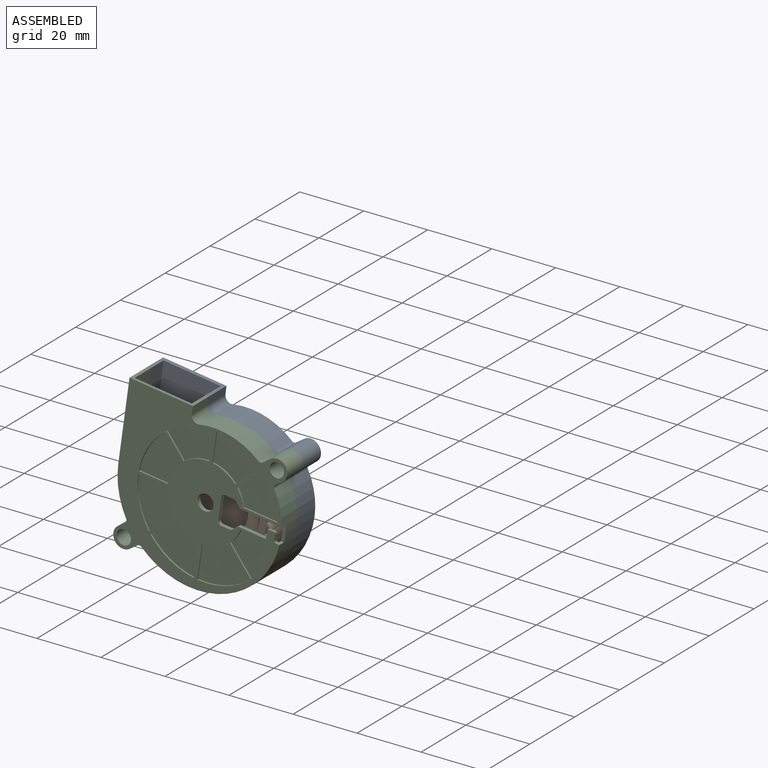
[diagram: assembled view]
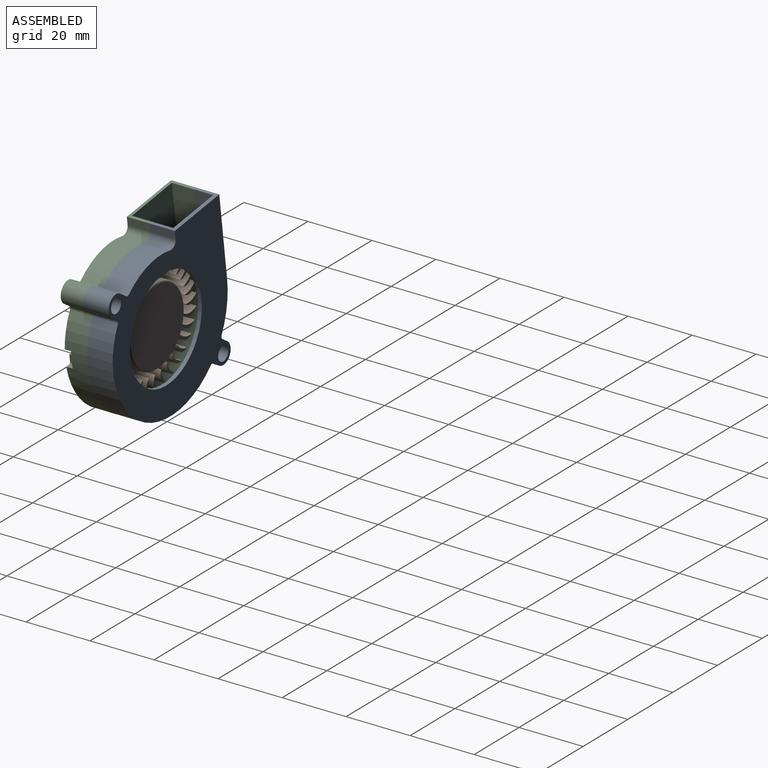
[diagram: assembled view, second angle]
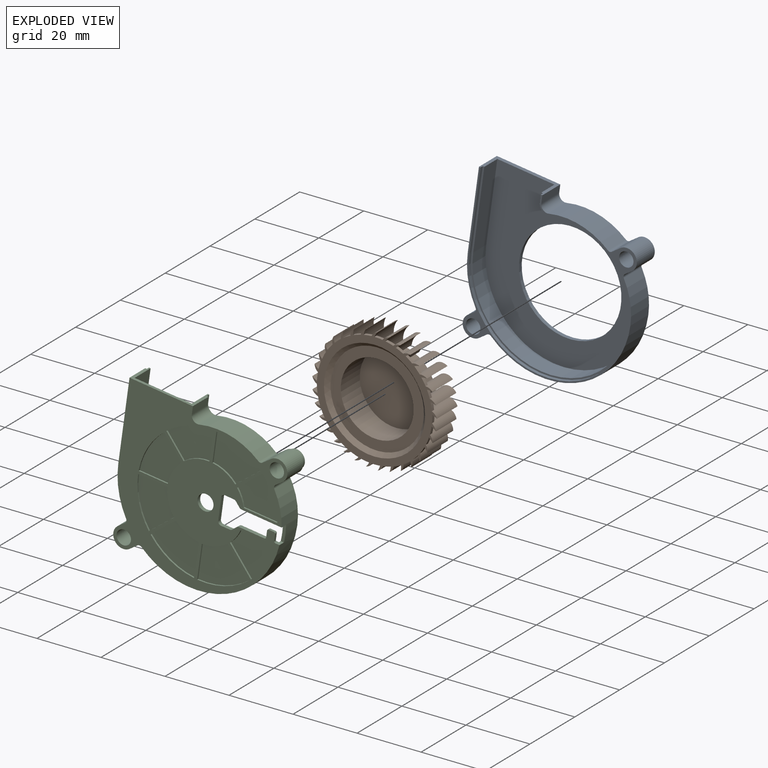
[diagram: exploded view]
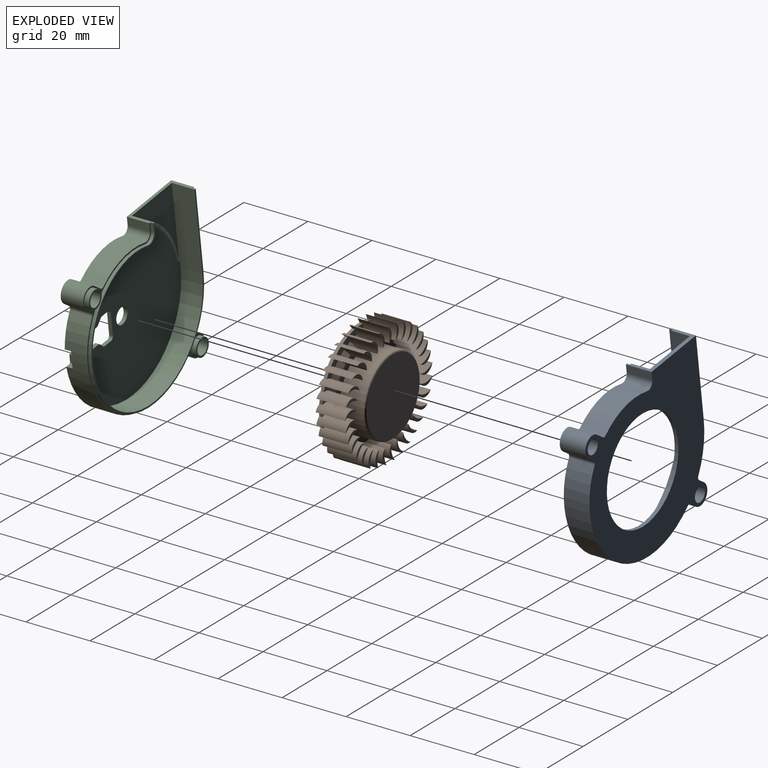
[diagram: exploded view, second angle]
ASSEMBLY  parts=3 mates=2
PART A: 35 faces, bbox 51.3x8x51.1 mm
  f0: cylinder r=22.07mm len=12.41mm, axis (0,-1,0), area 105.5mm2, adj f3,f7,f8,f10
  f1: plane 25.4x1mm, normal (1,0,0), area 25.4mm2, adj f3,f12,f28,f33
  f2: cylinder r=2.25mm len=8mm, axis (0,-1,0), area 113.1mm2, adj f3,f7
  f3: plane 51.3x51.07mm, normal (0,-1,0), area 126.8mm2, adj f0,f1,f2,f5,f6,f8,f9,f10
  f4: cylinder r=16mm len=32mm, axis (0,-1,0), area 120.6mm2, adj f7,f23
  f5: cylinder r=21.57mm len=28.05mm, axis (0,1,0), area 40.5mm2, adj f3,f11,f28,f33
  f6: cylinder r=2mm len=8mm, axis (0,-1,0), area 30mm2, adj f3,f7,f27,f30
  f7: plane 51.3x51.07mm, normal (0,1,0), area 1370.5mm2, adj f0,f2,f4,f6,f8,f9,f10,f12
  f8: cylinder r=1mm len=8mm, axis (0,-1,0), area 11.6mm2, adj f0,f3,f7,f14
  f9: cylinder r=1mm len=8mm, axis (0,-1,0), area 10.6mm2, adj f3,f7,f13,f27
  f10: cylinder r=25.65mm len=41.13mm, axis (0,-1,0), area 455.4mm2, adj f0,f3,f7,f15
  f11: cylinder r=2.5mm len=3.25mm, axis (0,1,0), area 4.7mm2, adj f3,f5,f29,f33
  f12: plane 20x8mm, normal (0,0,1), area 36.6mm2, adj f1,f3,f7,f19,f21,f23,f26,f29
  f13: plane 8x2.44mm, normal (-0.66,0,0.75), area 26mm2, adj f3,f7,f9,f16
  f14: plane 8x2.04mm, normal (0.66,0,-0.75), area 21.8mm2, adj f3,f7,f8,f16
  f15: cylinder r=1mm len=8mm, axis (0,-1,0), area 11mm2, adj f3,f7,f10,f32
  f16: cylinder r=3.3mm len=8mm, axis (0,-1,0), area 82.9mm2, adj f3,f7,f13,f14
  f17: plane 8x1.98mm, normal (-0.66,0,0.75), area 21.1mm2, adj f3,f7,f18,f24
  f18: cylinder r=1mm len=8mm, axis (0,-1,0), area 11.6mm2, adj f3,f7,f17,f31
  f19: plane 25.4x5.8mm, normal (1,0,0), area 147.3mm2, adj f12,f22,f23,f33
  f20: cylinder r=3mm len=5.8mm, axis (0,1,0), area 32.6mm2, adj f23,f25,f26,f33
  f21: plane 25.4x8mm, normal (-1,0,0), area 203.2mm2, adj f3,f7,f12,f31
  f22: cylinder r=24.65mm len=49.3mm, axis (0,1,0), area 449.3mm2, adj f19,f23,f25,f33
  f23: plane 50.07x49.3mm, normal (0,-1,0), area 1168mm2, adj f4,f12,f19,f20,f22,f25,f26
  f24: cylinder r=3.3mm len=8mm, axis (0,-1,0), area 82.9mm2, adj f3,f7,f17,f32
  f25: cylinder r=21.07mm len=27.4mm, axis (0,1,0), area 229.2mm2, adj f20,f22,f23,f33
  f26: plane 5.8x2.44mm, normal (-1,0,0), area 14.2mm2, adj f12,f20,f23,f33
  f27: cylinder r=22.07mm len=19.05mm, axis (0,-1,0), area 159.4mm2, adj f3,f6,f7,f9
  f28: cylinder r=25.15mm len=50.3mm, axis (0,1,0), area 79mm2, adj f1,f3,f5,f33
  f29: plane 2.44x1mm, normal (-1,0,0), area 2.4mm2, adj f3,f11,f12,f33
  f30: plane 8x2.44mm, normal (1,0,0), area 19.6mm2, adj f3,f6,f7,f12
  f31: cylinder r=25.65mm len=14.47mm, axis (0,-1,0), area 122.9mm2, adj f3,f7,f18,f21
  f32: plane 8x2.22mm, normal (0.66,0,-0.75), area 23.7mm2, adj f3,f7,f15,f24
  f33: plane 50.57x50.3mm, normal (0,-1,0), area 75.6mm2, adj f1,f5,f11,f12,f19,f20,f22,f25
  f34: cylinder r=2.25mm len=8mm, axis (0,-1,0), area 113.1mm2, adj f3,f7
PART B: 207 faces, bbox 39x10.5x38.9 mm
  f0: cone r=14.5mm half-angle=45deg, axis (0,-1,0), area 5.5mm2, adj f39,f59,f154,f201
  f1: cylinder r=2.92mm len=9.2mm, axis (0,1,0), area 52mm2, adj f18,f29,f75,f87,f177,f181
  f2: plane 4.09x3.34mm, normal (0,1,0), area 3.4mm2, adj f92,f133
  f3: cylinder r=2.92mm len=9.2mm, axis (0,1,0), area 52mm2, adj f15,f30,f38,f130,f132,f177
  f4: cylinder r=2.92mm len=9.2mm, axis (0,1,0), area 52mm2, adj f50,f112,f139,f140,f146,f177
  f5: cylinder r=5.73mm len=9.2mm, axis (0,1,0), area 44mm2, adj f47,f55,f68,f69,f149,f177
  f6: plane 3.17x2.78mm, normal (0,1,0), area 4.7mm2, adj f16,f25,f43,f64
  f7: plane 3.96x3.47mm, normal (0,1,0), area 3.4mm2, adj f96,f199
  f8: plane 3.08x2.29mm, normal (0,1,0), area 4.7mm2, adj f11,f62,f156,f192
  f9: cylinder r=5.73mm len=9.2mm, axis (0,1,0), area 44mm2, adj f108,f110,f121,f150,f174,f177
  f10: cylinder r=18mm len=2.14mm, axis (0,1,0), area 2.5mm2, adj f96,f106,f177,f195
  f11: cylinder r=5.73mm len=9.2mm, axis (0,1,0), area 44mm2, adj f8,f62,f70,f156,f177,f185
  f12: plane 4.92x2.23mm, normal (0,1,0), area 3.4mm2, adj f49,f167
  f13: cylinder r=18mm len=2.26mm, axis (0,1,0), area 2.5mm2, adj f26,f168,f176,f177
  f14: plane 5.03x1.97mm, normal (0,1,0), area 3.4mm2, adj f57,f116
  f15: cylinder r=18mm len=2.39mm, axis (0,1,0), area 2.5mm2, adj f3,f30,f177,f179
  f16: cone r=14.5mm half-angle=45deg, axis (0,-1,0), area 5.5mm2, adj f6,f43,f64,f154
  f17: plane 4.68x2.64mm, normal (0,1,0), area 3.4mm2, adj f111,f129
  f18: plane 5.09x1.71mm, normal (0,1,0), area 3.4mm2, adj f1,f75
  f19: plane 4.77x2.5mm, normal (0,1,0), area 3.4mm2, adj f37,f148
  f20: plane 5.07x1.79mm, normal (0,1,0), area 3.4mm2, adj f164,f176
  f21: plane 4.01x3.43mm, normal (0,1,0), area 3.4mm2, adj f106,f107
  f22: plane 3.35x2.63mm, normal (0,1,0), area 4.7mm2, adj f114,f128,f159,f171
  f23: cylinder r=18mm len=2.45mm, axis (0,1,0), area 2.5mm2, adj f108,f138,f177,f202
  f24: cylinder r=2.92mm len=9.2mm, axis (0,1,0), area 52mm2, adj f119,f135,f159,f175,f177,f190
  f25: cylinder r=18mm len=2.14mm, axis (0,1,0), area 2.5mm2, adj f6,f43,f64,f177
  f26: plane 3.04x2.71mm, normal (0,1,0), area 4.7mm2, adj f13,f168,f176,f194
  f27: plane 3.4x2.85mm, normal (0,1,0), area 4.7mm2, adj f28,f90,f118,f197
  f28: cylinder r=2.92mm len=9.2mm, axis (0,1,0), area 52mm2, adj f27,f86,f102,f118,f177,f197
  f29: cone r=14.5mm half-angle=45deg, axis (0,-1,0), area 5.5mm2, adj f1,f87,f154,f164
  f30: plane 2.77x2.56mm, normal (0,1,0), area 4.7mm2, adj f3,f15,f38,f179
  f31: plane 3.44x2.81mm, normal (0,1,0), area 4.7mm2, adj f34,f65,f69,f151
  f32: cylinder r=2.92mm len=9.2mm, axis (0,1,0), area 52mm2, adj f46,f63,f158,f177,f193,f206
  f33: cone r=14.5mm half-angle=45deg, axis (0,-1,0), area 5.5mm2, adj f84,f112,f154,f200
  f34: cone r=14.5mm half-angle=45deg, axis (0,-1,0), area 5.5mm2, adj f31,f65,f69,f154
  f35: cylinder r=5.73mm len=9.2mm, axis (0,1,0), area 44mm2, adj f58,f64,f74,f88,f177,f203
  f36: plane 4.38x3.01mm, normal (0,1,0), area 3.4mm2, adj f184,f205
  f37: cylinder r=5.73mm len=9.2mm, axis (0,1,0), area 44mm2, adj f19,f135,f148,f175,f177,f190
  f38: cone r=14.5mm half-angle=45deg, axis (0,-1,0), area 5.5mm2, adj f3,f30,f154,f179
  f39: plane 3.44x2.79mm, normal (0,1,0), area 4.7mm2, adj f0,f59,f142,f201
  f40: cone r=14.5mm half-angle=45deg, axis (0,-1,0), area 5.3mm2, adj f96,f106,f154,f195
  f41: plane 22.8x22.8mm, normal (0,-1,0), area 408.3mm2, adj f81
  f42: plane 3.83x3.61mm, normal (0,1,0), area 3.4mm2, adj f114,f201
  f43: cylinder r=5.73mm len=9.2mm, axis (0,1,0), area 44mm2, adj f6,f16,f25,f117,f126,f177
  f44: cylinder r=2.92mm len=9.2mm, axis (0,1,0), area 52mm2, adj f91,f124,f127,f145,f177,f178
  f45: plane 2.96x2.66mm, normal (0,1,0), area 4.7mm2, adj f60,f98,f169,f204
  f46: cylinder r=18mm len=2.2mm, axis (0,1,0), area 2.5mm2, adj f32,f63,f92,f177
  f47: plane 3.37x2.85mm, normal (0,1,0), area 4.7mm2, adj f5,f55,f117,f149
  f48: cone r=14.5mm half-angle=45deg, axis (0,-1,0), area 5.5mm2, adj f89,f125,f132,f154
  f49: cylinder r=5.73mm len=9.2mm, axis (0,1,0), area 44mm2, adj f12,f79,f136,f143,f167,f177
  f50: plane 4.5x2.87mm, normal (0,1,0), area 3.4mm2, adj f4,f112
  f51: plane 4.98x2.1mm, normal (0,1,0), area 3.4mm2, adj f89,f115
  f52: cylinder r=2.92mm len=9.2mm, axis (0,1,0), area 52mm2, adj f72,f98,f113,f177,f189,f191
  f53: plane 5.04x1.92mm, normal (0,1,0), area 3.4mm2, adj f152,f179
  f54: cylinder r=18mm len=2.5mm, axis (0,1,0), area 2.5mm2, adj f111,f115,f166,f177
  f55: cone r=14.5mm half-angle=45deg, axis (0,-1,0), area 5.5mm2, adj f5,f47,f117,f154
  f56: cone r=14.5mm half-angle=45deg, axis (0,-1,0), area 5.5mm2, adj f131,f152,f154,f178
  f57: cylinder r=2.92mm len=9.2mm, axis (0,1,0), area 52mm2, adj f14,f101,f116,f120,f122,f177
  f58: cone r=14.5mm half-angle=45deg, axis (0,-1,0), area 5.5mm2, adj f35,f74,f154,f183
  f59: cylinder r=2.92mm len=9.2mm, axis (0,1,0), area 52mm2, adj f0,f39,f82,f90,f142,f177
  f60: cone r=14.5mm half-angle=45deg, axis (0,-1,0), area 5.5mm2, adj f45,f98,f154,f204
  f61: cylinder r=18mm len=2.5mm, axis (0,1,0), area 2.5mm2, adj f75,f167,f170,f177
  f62: cone r=14.5mm half-angle=45deg, axis (0,-1,0), area 5.2mm2, adj f8,f11,f154,f192
  f63: plane 3.41x2.72mm, normal (0,1,0), area 4.7mm2, adj f32,f46,f92,f158
  f64: cylinder r=2.92mm len=9.2mm, axis (0,1,0), area 52mm2, adj f6,f16,f25,f35,f177,f203
  f65: cylinder r=5.73mm len=9.2mm, axis (0,1,0), area 44mm2, adj f31,f34,f95,f141,f151,f177
  f66: plane 3.31x2.57mm, normal (0,1,0), area 4.7mm2, adj f77,f78,f186,f199
  f67: cylinder r=18mm len=2.2mm, axis (0,1,0), area 2.5mm2, adj f131,f152,f177,f178
  f68: plane 4.26x3.15mm, normal (0,1,0), area 3.4mm2, adj f5,f69
  f69: cylinder r=2.92mm len=9.2mm, axis (0,1,0), area 52mm2, adj f5,f31,f34,f68,f151,f177
  f70: cylinder r=2.92mm len=9.2mm, axis (0,1,0), area 52mm2, adj f11,f121,f150,f174,f177,f185
  f71: plane 3.43x2.83mm, normal (0,1,0), area 4.7mm2, adj f97,f109,f184,f206
  f72: cone r=14.5mm half-angle=45deg, axis (0,-1,0), area 5.5mm2, adj f52,f86,f154,f191
  f73: cylinder r=12.25mm len=24.5mm, axis (0,1,0), area 577.3mm2, adj f100,f154
  f74: plane 2.87x2.61mm, normal (0,1,0), area 4.7mm2, adj f35,f58,f88,f183
  f75: cylinder r=5.73mm len=9.2mm, axis (0,1,0), area 44mm2, adj f1,f18,f61,f94,f170,f177
  f76: plane 2.83x2.05mm, normal (0,1,0), area 4.7mm2, adj f80,f116,f148,f157
  f77: cylinder r=18mm len=2.35mm, axis (0,1,0), area 2.5mm2, adj f66,f78,f177,f199
  f78: cylinder r=5.73mm len=9.2mm, axis (0,1,0), area 44mm2, adj f66,f77,f177,f186,f188,f192
  f79: cylinder r=18mm len=2.49mm, axis (0,1,0), area 2.5mm2, adj f49,f105,f143,f177
  f80: cone r=14.5mm half-angle=45deg, axis (0,-1,0), area 5.5mm2, adj f76,f116,f148,f154
  f81: cylinder r=11.4mm len=22.8mm, axis (0,1,0), area 608.8mm2, adj f41,f153
  f82: plane 4.13x3.29mm, normal (0,1,0), area 3.4mm2, adj f59,f90
  f83: cone r=14.6mm half-angle=45deg, axis (0,-1,0), area 162.1mm2, adj f153,f177
  f84: cylinder r=2.92mm len=9.2mm, axis (0,1,0), area 52mm2, adj f33,f163,f168,f177,f196,f200
  f85: cylinder r=18mm len=2.25mm, axis (0,1,0), area 2.5mm2, adj f95,f161,f162,f177
  f86: cylinder r=5.73mm len=9.2mm, axis (0,1,0), area 44mm2, adj f28,f72,f102,f113,f177,f191
  f87: plane 2.67x2.5mm, normal (0,1,0), area 4.7mm2, adj f1,f29,f164,f181
  f88: cylinder r=18mm len=2.35mm, axis (0,1,0), area 2.5mm2, adj f35,f74,f177,f183
  f89: cylinder r=2.92mm len=9.2mm, axis (0,1,0), area 52mm2, adj f48,f51,f115,f125,f165,f177
  f90: cylinder r=5.73mm len=9.2mm, axis (0,1,0), area 44mm2, adj f27,f59,f82,f118,f177,f197
  f91: cylinder r=18mm len=1.94mm, axis (0,1,0), area 2.5mm2, adj f44,f124,f177,f205
  f92: cylinder r=5.73mm len=9.2mm, axis (0,1,0), area 44mm2, adj f2,f46,f63,f133,f158,f177
  f93: plane 5.09x1.66mm, normal (0,1,0), area 3.4mm2, adj f202,f204
  f94: cone r=14.5mm half-angle=45deg, axis (0,-1,0), area 5.5mm2, adj f75,f154,f167,f170
  f95: cylinder r=2.92mm len=9.2mm, axis (0,1,0), area 52mm2, adj f65,f85,f141,f147,f161,f177
  f96: cylinder r=5.73mm len=9.2mm, axis (0,1,0), area 44mm2, adj f7,f10,f40,f177,f195,f199
  f97: cylinder r=18mm len=1.93mm, axis (0,1,0), area 2.5mm2, adj f71,f177,f184,f206
  f98: cylinder r=5.73mm len=9.2mm, axis (0,1,0), area 44mm2, adj f45,f52,f60,f169,f177,f189
  f99: cone r=14.5mm half-angle=45deg, axis (0,-1,0), area 5.5mm2, adj f104,f129,f154,f173
  f100: torus R=11.75mm, axis (0,1,0), area 59.6mm2, adj f73,f137
  f101: cone r=14.5mm half-angle=45deg, axis (0,-1,0), area 5.5mm2, adj f57,f120,f154,f182
  f102: plane 4.61x2.74mm, normal (0,1,0), area 3.4mm2, adj f28,f86
  f103: cone r=14.5mm half-angle=45deg, axis (0,-1,0), area 5.5mm2, adj f108,f138,f154,f202
  f104: cylinder r=2.92mm len=9.2mm, axis (0,1,0), area 52mm2, adj f99,f162,f173,f177,f180,f187
  f105: cylinder r=2.92mm len=9.2mm, axis (0,1,0), area 52mm2, adj f79,f123,f134,f136,f143,f177
  f106: cylinder r=2.92mm len=9.2mm, axis (0,1,0), area 52mm2, adj f10,f21,f40,f107,f177,f195
  f107: cylinder r=5.73mm len=9.2mm, axis (0,1,0), area 44mm2, adj f21,f106,f139,f140,f146,f177
  f108: cylinder r=2.92mm len=9.2mm, axis (0,1,0), area 52mm2, adj f9,f23,f103,f110,f138,f177
  f109: cone r=14.5mm half-angle=45deg, axis (0,-1,0), area 5.5mm2, adj f71,f154,f184,f206
  f110: plane 5.06x1.83mm, normal (0,1,0), area 3.4mm2, adj f9,f108
  f111: cylinder r=2.92mm len=9.2mm, axis (0,1,0), area 52mm2, adj f17,f54,f129,f144,f166,f177
  f112: cylinder r=5.73mm len=9.2mm, axis (0,1,0), area 44mm2, adj f4,f33,f50,f177,f196,f200
  f113: cylinder r=18mm len=2.08mm, axis (0,1,0), area 2.5mm2, adj f52,f86,f177,f191
  f114: cylinder r=2.92mm len=9.2mm, axis (0,1,0), area 52mm2, adj f22,f42,f128,f171,f177,f201
  f115: cylinder r=5.73mm len=9.2mm, axis (0,1,0), area 44mm2, adj f51,f54,f89,f144,f166,f177
  f116: cylinder r=5.73mm len=9.2mm, axis (0,1,0), area 44mm2, adj f14,f57,f76,f80,f157,f177
  f117: cylinder r=2.92mm len=9.2mm, axis (0,1,0), area 52mm2, adj f43,f47,f55,f126,f149,f177
  f118: cone r=14.5mm half-angle=45deg, axis (0,-1,0), area 5.5mm2, adj f27,f28,f90,f154
  f119: plane 4.34x3.06mm, normal (0,1,0), area 3.4mm2, adj f24,f159
  f120: plane 2.53x2.46mm, normal (0,1,0), area 4.7mm2, adj f57,f101,f122,f182
  f121: plane 2.74x2.11mm, normal (0,1,0), area 4.7mm2, adj f9,f70,f150,f174
  f122: cylinder r=18mm len=2.47mm, axis (0,1,0), area 2.5mm2, adj f57,f120,f177,f182
  f123: cylinder r=5.73mm len=9.2mm, axis (0,1,0), area 44mm2, adj f105,f134,f160,f172,f177,f198
  f124: plane 3.33x2.84mm, normal (0,1,0), area 4.7mm2, adj f44,f91,f127,f205
  f125: plane 2.6x2.34mm, normal (0,1,0), area 4.7mm2, adj f48,f89,f132,f165
  f126: plane 4.71x2.6mm, normal (0,1,0), area 3.4mm2, adj f43,f117
  f127: cone r=14.5mm half-angle=45deg, axis (0,-1,0), area 5.5mm2, adj f44,f124,f154,f205
  f128: cone r=14.5mm half-angle=45deg, axis (0,-1,0), area 5.5mm2, adj f22,f114,f154,f159
  f129: cylinder r=5.73mm len=9.2mm, axis (0,1,0), area 44mm2, adj f17,f99,f111,f173,f177,f187
  f130: plane 5.1x1.58mm, normal (0,1,0), area 3.4mm2, adj f3,f132
  f131: plane 3.11x2.75mm, normal (0,1,0), area 4.7mm2, adj f56,f67,f152,f178
  f132: cylinder r=5.73mm len=9.2mm, axis (0,1,0), area 44mm2, adj f3,f48,f125,f130,f165,f177
  f133: cylinder r=2.92mm len=9.2mm, axis (0,1,0), area 52mm2, adj f2,f92,f160,f172,f177,f198
  f134: plane 4.57x2.78mm, normal (0,1,0), area 3.4mm2, adj f105,f123
  f135: cylinder r=18mm len=2.45mm, axis (0,1,0), area 2.5mm2, adj f24,f37,f175,f177
  f136: cone r=14.5mm half-angle=45deg, axis (0,-1,0), area 5.5mm2, adj f49,f105,f143,f154
  f137: plane 23.5x23.5mm, normal (0,1,0), area 433.7mm2, adj f100
  f138: plane 2.57x2.48mm, normal (0,1,0), area 4.7mm2, adj f23,f103,f108,f202
  f139: plane 3.42x2.84mm, normal (0,1,0), area 4.7mm2, adj f4,f107,f140,f146
  f140: cylinder r=18mm len=1.85mm, axis (0,1,0), area 2.5mm2, adj f4,f107,f139,f177
  f141: plane 3.74x3.7mm, normal (0,1,0), area 3.4mm2, adj f65,f95
  f142: cylinder r=18mm len=2.08mm, axis (0,1,0), area 2.5mm2, adj f39,f59,f177,f201
  f143: plane 3x2.21mm, normal (0,1,0), area 4.7mm2, adj f49,f79,f105,f136
  f144: cone r=14.5mm half-angle=45deg, axis (0,-1,0), area 5.5mm2, adj f111,f115,f154,f166
  f145: plane 4.8x2.46mm, normal (0,1,0), area 3.4mm2, adj f44,f178
  f146: cone r=14.5mm half-angle=45deg, axis (0,-1,0), area 5.5mm2, adj f4,f107,f139,f154
  f147: cone r=14.5mm half-angle=45deg, axis (0,-1,0), area 5.5mm2, adj f95,f154,f161,f162
  f148: cylinder r=2.92mm len=9.2mm, axis (0,1,0), area 52mm2, adj f19,f37,f76,f80,f157,f177
  f149: cylinder r=18mm len=1.86mm, axis (0,1,0), area 2.5mm2, adj f5,f47,f117,f177
  f150: cylinder r=18mm len=2.51mm, axis (0,1,0), area 2.5mm2, adj f9,f70,f121,f177
  f151: cylinder r=18mm len=2.01mm, axis (0,1,0), area 2.5mm2, adj f31,f65,f69,f177
  f152: cylinder r=2.92mm len=9.2mm, axis (0,1,0), area 52mm2, adj f53,f56,f67,f131,f177,f179
  f153: plane 29.2x29.2mm, normal (0,-1,0), area 261.4mm2, adj f81,f83
  f154: plane 29x29mm, normal (0,1,0), area 189.1mm2, adj f0,f16,f29,f33,f34,f38,f40,f48
  f155: plane 5.1x1.54mm, normal (0,1,0), area 3.4mm2, adj f182,f183
  f156: cylinder r=18mm len=2.47mm, axis (0,1,0), area 2.5mm2, adj f8,f11,f177,f192
  f157: cylinder r=18mm len=2.51mm, axis (0,1,0), area 2.5mm2, adj f76,f116,f148,f177
  f158: cone r=14.5mm half-angle=45deg, axis (0,-1,0), area 5.5mm2, adj f32,f63,f92,f154
  f159: cylinder r=5.73mm len=9.2mm, axis (0,1,0), area 44mm2, adj f22,f24,f119,f128,f171,f177
  f160: cone r=14.5mm half-angle=45deg, axis (0,-1,0), area 5.5mm2, adj f123,f133,f154,f172
  f161: plane 3.38x2.68mm, normal (0,1,0), area 4.7mm2, adj f85,f95,f147,f162
  f162: cylinder r=5.73mm len=9.2mm, axis (0,1,0), area 44mm2, adj f85,f104,f147,f161,f177,f180
  f163: plane 4.87x2.32mm, normal (0,1,0), area 3.4mm2, adj f84,f168
  f164: cylinder r=5.73mm len=9.2mm, axis (0,1,0), area 44mm2, adj f20,f29,f87,f176,f177,f181
  f165: cylinder r=18mm len=2.49mm, axis (0,1,0), area 2.5mm2, adj f89,f125,f132,f177
  f166: plane 2.92x2.12mm, normal (0,1,0), area 4.7mm2, adj f54,f111,f115,f144
  f167: cylinder r=2.92mm len=9.2mm, axis (0,1,0), area 52mm2, adj f12,f49,f61,f94,f170,f177
  f168: cylinder r=5.73mm len=9.2mm, axis (0,1,0), area 44mm2, adj f13,f26,f84,f163,f177,f194
  f169: cylinder r=18mm len=2.31mm, axis (0,1,0), area 2.5mm2, adj f45,f98,f177,f204
  f170: plane 2.67x2.22mm, normal (0,1,0), area 4.7mm2, adj f61,f75,f94,f167
  f171: cylinder r=18mm len=2.3mm, axis (0,1,0), area 2.5mm2, adj f22,f114,f159,f177
  f172: plane 3.26x2.51mm, normal (0,1,0), area 4.7mm2, adj f123,f133,f160,f198
  f173: plane 3.21x2.44mm, normal (0,1,0), area 4.7mm2, adj f99,f104,f129,f187
  f174: cone r=14.5mm half-angle=45deg, axis (0,-1,0), area 5.5mm2, adj f9,f70,f121,f154
  f175: plane 3.14x2.37mm, normal (0,1,0), area 4.7mm2, adj f24,f37,f135,f190
  f176: cylinder r=2.92mm len=9.2mm, axis (0,1,0), area 52mm2, adj f13,f20,f26,f164,f177,f194
  f177: plane 38.96x38.91mm, normal (0,-1,0), area 265.7mm2, adj f1,f3,f4,f5,f9,f10,f11,f13
  f178: cylinder r=5.73mm len=9.2mm, axis (0,1,0), area 44mm2, adj f44,f56,f67,f131,f145,f177
  f179: cylinder r=5.73mm len=9.2mm, axis (0,1,0), area 44mm2, adj f15,f30,f38,f53,f152,f177
  f180: plane 4.22x3.2mm, normal (0,1,0), area 3.4mm2, adj f104,f162
  f181: cylinder r=18mm len=2.42mm, axis (0,1,0), area 2.5mm2, adj f1,f87,f164,f177
  f182: cylinder r=5.73mm len=9.2mm, axis (0,1,0), area 44mm2, adj f101,f120,f122,f155,f177,f183
  f183: cylinder r=2.92mm len=9.2mm, axis (0,1,0), area 52mm2, adj f58,f74,f88,f155,f177,f182
  f184: cylinder r=2.92mm len=9.2mm, axis (0,1,0), area 52mm2, adj f36,f71,f97,f109,f177,f205
  f185: plane 4.85x2.37mm, normal (0,1,0), area 3.4mm2, adj f11,f70
  f186: cone r=14.5mm half-angle=45deg, axis (0,-1,0), area 5.3mm2, adj f66,f78,f154,f199
  f187: cylinder r=18mm len=2.42mm, axis (0,1,0), area 2.5mm2, adj f104,f129,f173,f177
  f188: plane 4.46x2.92mm, normal (0,1,0), area 3.4mm2, adj f78,f192
  f189: plane 4.94x2.19mm, normal (0,1,0), area 3.4mm2, adj f52,f98
  f190: cone r=14.5mm half-angle=45deg, axis (0,-1,0), area 5.5mm2, adj f24,f37,f154,f175
  f191: plane 3.23x2.81mm, normal (0,1,0), area 4.7mm2, adj f52,f72,f86,f113
  f192: cylinder r=2.92mm len=9.2mm, axis (0,1,0), area 52mm2, adj f8,f62,f78,f156,f177,f188
  f193: plane 3.88x3.56mm, normal (0,1,0), area 3.4mm2, adj f32,f206
  f194: cone r=14.5mm half-angle=45deg, axis (0,-1,0), area 5.5mm2, adj f26,f154,f168,f176
  f195: plane 3.43x2.76mm, normal (0,1,0), area 4.7mm2, adj f10,f40,f96,f106
  f196: cylinder r=18mm len=2.01mm, axis (0,1,0), area 2.5mm2, adj f84,f112,f177,f200
  f197: cylinder r=18mm len=1.78mm, axis (0,1,0), area 2.5mm2, adj f27,f28,f90,f177
  f198: cylinder r=18mm len=2.39mm, axis (0,1,0), area 2.5mm2, adj f123,f133,f172,f177
  f199: cylinder r=2.92mm len=9.2mm, axis (0,1,0), area 52mm2, adj f7,f66,f77,f96,f177,f186
  f200: plane 3.29x2.83mm, normal (0,1,0), area 4.7mm2, adj f33,f84,f112,f196
  f201: cylinder r=5.73mm len=9.2mm, axis (0,1,0), area 44mm2, adj f0,f39,f42,f114,f142,f177
  f202: cylinder r=5.73mm len=9.2mm, axis (0,1,0), area 44mm2, adj f23,f93,f103,f138,f177,f204
  f203: plane 5x2.05mm, normal (0,1,0), area 3.4mm2, adj f35,f64
  f204: cylinder r=2.92mm len=9.2mm, axis (0,1,0), area 52mm2, adj f45,f60,f93,f169,f177,f202
  f205: cylinder r=5.73mm len=9.2mm, axis (0,1,0), area 44mm2, adj f36,f91,f124,f127,f177,f184
  f206: cylinder r=5.73mm len=9.2mm, axis (0,1,0), area 44mm2, adj f32,f71,f97,f109,f177,f193
PART C: 104 faces, bbox 52.9x8.5x51.4 mm
  f0: cylinder r=3mm len=7.1mm, axis (0,-1,0), area 38.5mm2, adj f6,f24,f28,f77,f94
  f1: plane 7x1.2mm, normal (1,0,0), area 8.4mm2, adj f6,f76,f98,f101
  f2: plane 9.17x0.5mm, normal (0,0,1), area 4.6mm2, adj f60,f61,f62,f76
  f3: cylinder r=0.5mm len=0.8mm, axis (0,-1,0), area 0.6mm2, adj f33,f67,f75,f76
  f4: plane 1.31x1.31mm, normal (-0.71,0,0.71), area 2.2mm2, adj f6,f13,f76,f97
  f5: plane 10.57x0.5mm, normal (1,0,0), area 5.3mm2, adj f49,f50,f68,f76
  f6: plane 49.16x46.35mm, normal (0,1,0), area 1650.7mm2, adj f0,f1,f4,f12,f13,f14,f19,f21
  f7: plane 2.44x1mm, normal (1,0,0), area 2.4mm2, adj f42,f80,f90,f94
  f8: plane 2x0.8mm, normal (1,0,0), area 1.6mm2, adj f10,f16,f67,f76
  f9: plane 5.65x5.65mm, normal (0,1,0), area 9.2mm2, adj f29,f31
  f10: cylinder r=0.5mm len=0.8mm, axis (0,1,0), area 0.6mm2, adj f8,f37,f67,f76
  f11: cylinder r=0.5mm len=0.8mm, axis (0,-1,0), area 0.6mm2, adj f33,f37,f67,f76
  f12: cylinder r=1mm len=1.2mm, axis (0,-1,0), area 0.9mm2, adj f6,f76,f102,f103
  f13: cylinder r=1mm len=1.2mm, axis (0,-1,0), area 0.9mm2, adj f4,f6,f21,f76
  f14: cylinder r=2.5mm len=5mm, axis (0,1,0), area 18.8mm2, adj f6,f76
  f15: plane 7x2.44mm, normal (1,0,0), area 17.1mm2, adj f42,f74,f76,f90
  f16: cylinder r=0.5mm len=0.8mm, axis (0,1,0), area 0.6mm2, adj f8,f67,f75,f76
  f17: plane 7x1.98mm, normal (-0.66,0,0.75), area 18.5mm2, adj f20,f42,f76,f93
  f18: plane 10.54x0.5mm, normal (-1,0,0), area 5.3mm2, adj f34,f43,f44,f76
  f19: plane 12.63x2mm, normal (0,0,-1), area 16mm2, adj f6,f22,f28,f76,f85,f99
  f20: cylinder r=3.3mm len=7mm, axis (0,1,0), area 72.6mm2, adj f17,f42,f76,f84
  f21: plane 2.79x1.2mm, normal (0,0,1), area 3.3mm2, adj f6,f13,f76,f98
  f22: cylinder r=1mm len=1.2mm, axis (0,1,0), area 0.9mm2, adj f6,f19,f76,f103
  f23: plane 22.44x18mm, normal (0,1,0), area 150.3mm2, adj f24,f41,f77,f82,f90
  f24: plane 7.1x2.44mm, normal (-1,0,0), area 17.4mm2, adj f0,f23,f90,f94
  f25: plane 9.2x0.5mm, normal (1,0,0), area 4.6mm2, adj f51,f52,f54,f76
  f26: cylinder r=1mm len=7mm, axis (0,1,0), area 10.1mm2, adj f42,f76,f85,f86
  f27: plane 9.17x0.5mm, normal (-1,0,0), area 4.6mm2, adj f38,f63,f65,f76
  f28: cylinder r=21.07mm len=27.4mm, axis (0,-1,0), area 266.7mm2, adj f0,f6,f19,f83,f94,f99
  f29: cylinder r=2.25mm len=8.5mm, axis (0,1,0), area 120.2mm2, adj f9,f76
  f30: plane 6.96x6.96mm, normal (-0.71,0,0.71), area 4.9mm2, adj f66,f76,f95,f100
  f31: cylinder r=2.82mm len=5.65mm, axis (0,1,0), area 26.6mm2, adj f9,f42
  f32: cylinder r=25.15mm len=50.3mm, axis (0,-1,0), area 79mm2, adj f42,f70,f81,f94
  f33: plane 2x0.8mm, normal (-1,0,0), area 1.6mm2, adj f3,f11,f67,f76
  f34: cylinder r=12mm len=7.62mm, axis (0,1,0), area 4.2mm2, adj f18,f44,f76,f79
  f35: plane 6.3x6.3mm, normal (-0.71,0,-0.71), area 4.5mm2, adj f60,f61,f62,f76
  f36: cylinder r=1mm len=7mm, axis (0,1,0), area 9.6mm2, adj f42,f72,f76,f84
  f37: plane 1.5x0.8mm, normal (0,0,1), area 1.2mm2, adj f10,f11,f67,f76
  f38: plane 13.93x12.33mm, normal (0,-1,0), area 107.6mm2, adj f27,f63,f64,f65
  f39: plane 7.67x7.67mm, normal (-0.71,0,-0.71), area 5.4mm2, adj f49,f50,f68,f76
  f40: plane 7.67x7.67mm, normal (0.71,0,0.71), area 5.4mm2, adj f45,f47,f48,f76
  f41: torus R=1.41mm, axis (0,-1,0), area 1.6mm2, adj f6,f23,f77,f82
  f42: plane 51.3x51.07mm, normal (0,1,0), area 108.5mm2, adj f7,f15,f17,f20,f26,f31,f32,f36
  f43: cylinder r=21.88mm len=14.61mm, axis (0,1,0), area 8.2mm2, adj f18,f44,f76,f79
  f44: plane 14.61x13.7mm, normal (0,-1,0), area 127.2mm2, adj f18,f34,f43,f79
  f45: cylinder r=12mm len=4.77mm, axis (0,1,0), area 2.8mm2, adj f40,f46,f48,f76
  f46: plane 10.88x0.5mm, normal (0,0,-1), area 5.4mm2, adj f45,f47,f48,f76
  f47: cylinder r=21.88mm len=12.45mm, axis (0,1,0), area 7mm2, adj f40,f46,f48,f76
  f48: plane 13.57x12.45mm, normal (0,-1,0), area 105.4mm2, adj f40,f45,f46,f47
  f49: cylinder r=12mm len=7.62mm, axis (0,1,0), area 4.2mm2, adj f5,f39,f50,f76
  f50: plane 15.3x13.73mm, normal (0,-1,0), area 135.9mm2, adj f5,f39,f49,f68
  f51: cylinder r=12mm len=7.62mm, axis (0,1,0), area 4.2mm2, adj f25,f53,f54,f76
  f52: cylinder r=21.88mm len=14.58mm, axis (0,1,0), area 7.9mm2, adj f25,f53,f54,f76
  f53: plane 6.96x6.96mm, normal (-0.71,0,0.71), area 4.9mm2, adj f51,f52,f54,f76
  f54: plane 14.58x12.36mm, normal (0,-1,0), area 115.4mm2, adj f25,f51,f52,f53
  f55: cylinder r=12mm len=4.77mm, axis (0,1,0), area 2.8mm2, adj f56,f58,f59,f76
  f56: plane 6.99x6.99mm, normal (0.71,0,-0.71), area 4.9mm2, adj f55,f57,f59,f76
  f57: cylinder r=21.88mm len=11.76mm, axis (0,1,0), area 6.8mm2, adj f56,f58,f59,f76
  f58: plane 10.66x0.5mm, normal (0,0,1), area 5.3mm2, adj f55,f57,f59,f76
  f59: plane 13.36x11.76mm, normal (0,-1,0), area 97mm2, adj f55,f56,f57,f58
  f60: cylinder r=12mm len=7.62mm, axis (0,1,0), area 4.2mm2, adj f2,f35,f62,f76
  f61: cylinder r=21.88mm len=13.93mm, axis (0,1,0), area 7.7mm2, adj f2,f35,f62,f76
  f62: plane 13.93x12.33mm, normal (0,-1,0), area 107.6mm2, adj f2,f35,f60,f61
  f63: cylinder r=12mm len=7.62mm, axis (0,1,0), area 4.2mm2, adj f27,f38,f64,f76
  f64: plane 6.3x6.3mm, normal (0.71,0,0.71), area 4.5mm2, adj f38,f63,f65,f76
  f65: cylinder r=21.88mm len=13.93mm, axis (0,1,0), area 7.7mm2, adj f27,f38,f64,f76
  f66: cylinder r=12mm len=7.62mm, axis (0,1,0), area 4.2mm2, adj f30,f76,f96,f100
  f67: plane 3.5x3mm, normal (0,1,0), area 7.5mm2, adj f3,f8,f10,f11,f16,f33,f37,f75
  f68: cylinder r=21.88mm len=15.3mm, axis (0,1,0), area 8.4mm2, adj f5,f39,f50,f76
  f69: cylinder r=2.82mm len=5.65mm, axis (0,1,0), area 26.6mm2, adj f42,f78
  f70: cylinder r=21.57mm len=28.05mm, axis (0,-1,0), area 40.5mm2, adj f32,f42,f80,f94
  f71: cylinder r=2.25mm len=8.5mm, axis (0,1,0), area 120.2mm2, adj f76,f78
  f72: cylinder r=25.65mm len=41.13mm, axis (0,1,0), area 393.3mm2, adj f36,f42,f75,f76,f85,f99
  f73: cylinder r=1mm len=7mm, axis (0,1,0), area 9.3mm2, adj f42,f76,f88,f89
  f74: cylinder r=2mm len=7mm, axis (0,1,0), area 26.3mm2, adj f15,f42,f76,f89
  f75: plane 12.66x2mm, normal (0,0,1), area 13.2mm2, adj f3,f6,f16,f67,f72,f76,f83,f97
  f76: plane 51.17x51.07mm, normal (0,-1,0), area 1131.7mm2, adj f1,f2,f3,f4,f5,f8,f10,f11
  f77: torus R=22.35mm, axis (0,1,0), area 37.3mm2, adj f0,f6,f23,f41
  f78: plane 5.65x5.65mm, normal (0,1,0), area 9.2mm2, adj f69,f71
  f79: plane 6.99x6.99mm, normal (0.71,0,-0.71), area 4.9mm2, adj f34,f43,f44,f76
  f80: cylinder r=2.5mm len=3.25mm, axis (0,-1,0), area 4.7mm2, adj f7,f42,f70,f94
  f81: plane 25.4x1mm, normal (-1,0,0), area 25.4mm2, adj f32,f42,f90,f94
  f82: plane 25.4x7.1mm, normal (1,0,0), area 179.6mm2, adj f6,f23,f41,f83,f90,f94
  f83: cylinder r=24.65mm len=49.3mm, axis (0,-1,0), area 524.7mm2, adj f6,f28,f75,f82,f94,f99
  f84: plane 7x2.22mm, normal (0.66,0,-0.75), area 20.7mm2, adj f20,f36,f42,f76
  f85: cylinder r=22.07mm len=12.41mm, axis (0,1,0), area 87.1mm2, adj f19,f26,f42,f72,f76,f99
  f86: plane 7x2.04mm, normal (0.66,0,-0.75), area 19.1mm2, adj f26,f42,f76,f87
  f87: cylinder r=3.3mm len=7mm, axis (0,1,0), area 72.6mm2, adj f42,f76,f86,f88
  f88: plane 7x2.44mm, normal (-0.66,0,0.75), area 22.8mm2, adj f42,f73,f76,f87
  f89: cylinder r=22.07mm len=19.05mm, axis (0,1,0), area 139.5mm2, adj f42,f73,f74,f76
  f90: plane 20x8mm, normal (0,0,1), area 31.2mm2, adj f7,f15,f23,f24,f42,f76,f81,f82
  f91: plane 25.4x7mm, normal (-1,0,0), area 177.8mm2, adj f42,f76,f90,f92
  f92: cylinder r=25.65mm len=14.47mm, axis (0,1,0), area 107.6mm2, adj f42,f76,f91,f93
  f93: cylinder r=1mm len=7mm, axis (0,1,0), area 10.1mm2, adj f17,f42,f76,f92
  f94: plane 50.57x50.3mm, normal (0,1,0), area 75.6mm2, adj f0,f7,f24,f28,f32,f70,f80,f81
  f95: cylinder r=21.88mm len=14.58mm, axis (0,1,0), area 7.9mm2, adj f30,f76,f96,f100
  f96: plane 9.2x0.5mm, normal (0,0,-1), area 4.6mm2, adj f66,f76,f95,f100
  f97: cylinder r=1mm len=1.2mm, axis (0,1,0), area 0.9mm2, adj f4,f6,f75,f76
  f98: cylinder r=1mm len=1.2mm, axis (0,-1,0), area 1.9mm2, adj f1,f6,f21,f76
  f99: plane 5.2x1.16mm, normal (0,-1,0), area 5.2mm2, adj f19,f28,f72,f75,f83,f85
  f100: plane 14.58x12.36mm, normal (0,-1,0), area 115.4mm2, adj f30,f66,f95,f96
  f101: cylinder r=1mm len=1.2mm, axis (0,-1,0), area 1.9mm2, adj f1,f6,f76,f102
  f102: plane 2.79x1.2mm, normal (0,0,-1), area 3.3mm2, adj f6,f12,f76,f101
  f103: plane 1.31x1.31mm, normal (-0.71,0,-0.71), area 2.2mm2, adj f6,f12,f22,f76
PLACE A rot(axis=(0,1,0),7.9deg) t=(-39.11,-34.64,0.8)mm
PLACE B rot(axis=(0,1,0),7.9deg) t=(-39.11,-34.14,0.8)mm
PLACE C rot(axis=(0,1,0),7.9deg) t=(-39.11,-34.64,0.8)mm
MATE fastened A.f24 <-> C.f20  axis (0,-1,0) through (-64.64,-27.64,-15.84)mm
MATE revolute B.f0 <-> C.f14  axis (0,-1,0) through (-39.11,-32.94,0.8)mm
